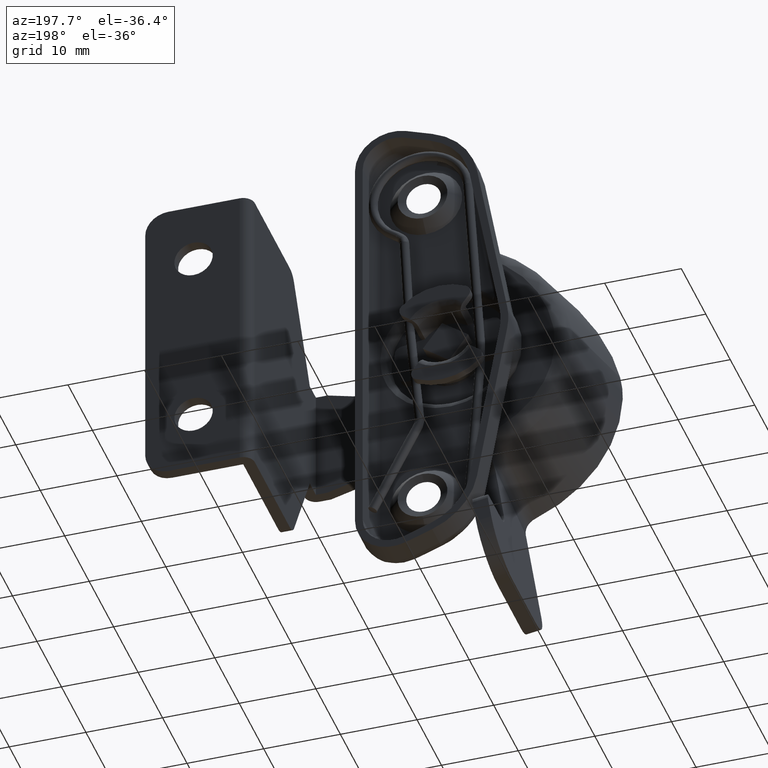
[diagram: clean part render]
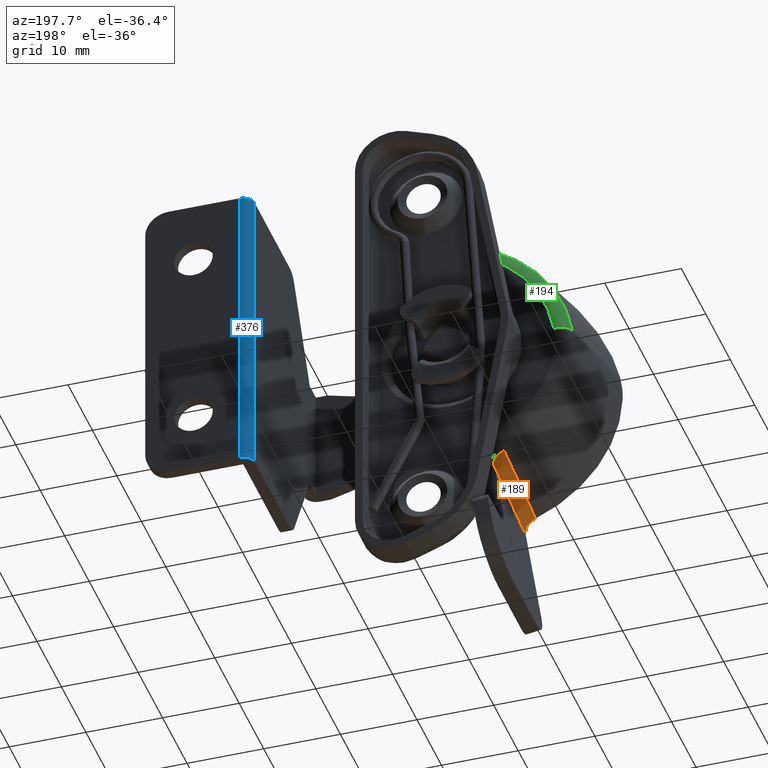
[diagram: same view with three faces highlighted in distinct colors, each labeled with its STEP entity id]
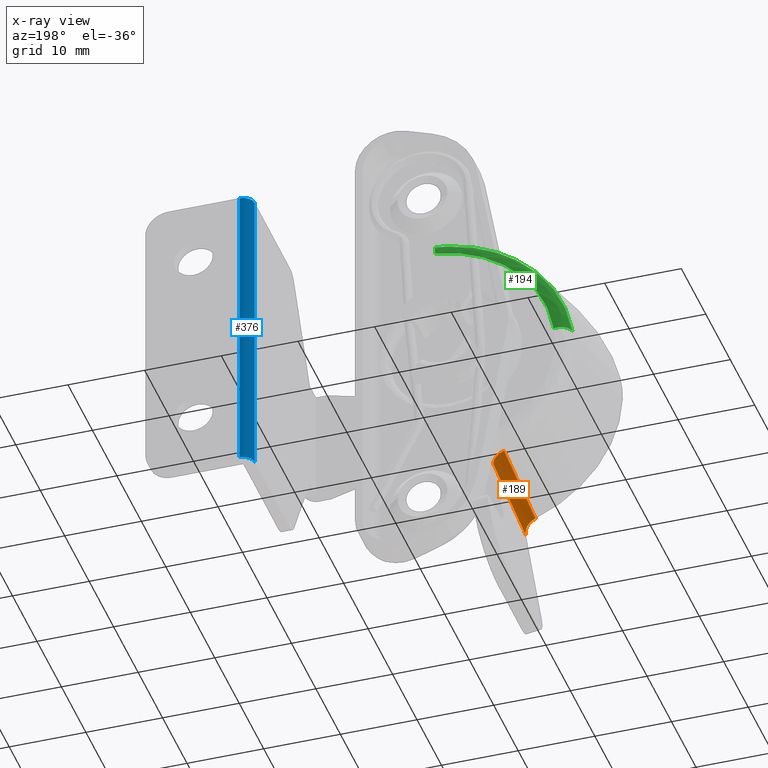
[diagram: x-ray of the same camera — body ghosted, the three highlighted faces saturated]
A machine part, auxiliary view with three faces highlighted in distinct colors.
The next image is the same camera in x-ray (body ghosted, the three faces saturated) — at least one of them is partly hidden behind the body in this view.
Their STEP definitions:

[orange] entity #189 — the highlighted face is a freeform B-spline surface patch.
#189=ADVANCED_FACE('',(#433),#432,.F.);
#432=( BOUNDED_SURFACE() B_SPLINE_SURFACE( 3,2,((#2611,#2612,#2613),(#2614,#2615,#2616),(#2617,#2618,#2619),(#2620,#2621,#2622)), .UNSPECIFIED.,.F.,.F.,.F.) B_SPLINE_SURFACE_WITH_KNOTS((4,4),(3,3),(4.58591804505E-04,1.27257944679E-02),(0.00000000000E+00,1.00000000000E+00), .UNSPECIFIED. ) GEOMETRIC_REPRESENTATION_ITEM() RATIONAL_B_SPLINE_SURFACE(((1.00000000000E+00,7.84169253251E-01,1.00000000000E+00),(1.00000000000E+00,7.80433225810E-01,1.00000000000E+00),(1.00000000000E+00,7.77230837199E-01,1.00000000000E+00),(1.00000000000E+00,7.74381274733E-01,1.00000000000E+00))) REPRESENTATION_ITEM('') SURFACE() );
#433=FACE_OUTER_BOUND('',#2623,.T.);
#2611=CARTESIAN_POINT('',(-2.77216384993E+01,-2.26717670756E-02,-1.39217377659E+01));
#2612=CARTESIAN_POINT('',(-2.62531310222E+01,5.67293244882E-02,-1.45066116554E+01));
#2613=CARTESIAN_POINT('',(-2.64877668766E+01,4.02187521587E-01,-1.60332094610E+01));
#2614=CARTESIAN_POINT('',(-2.78795426122E+01,-4.01314871259E+00,-1.47947432791E+01));
#2615=CARTESIAN_POINT('',(-2.63864174512E+01,-3.95615913769E+00,-1.53738055059E+01));
#2616=CARTESIAN_POINT('',(-2.66233560774E+01,-3.58828778314E+00,-1.69153857038E+01));
#2617=CARTESIAN_POINT('',(-2.80335949263E+01,-8.00445367574E+00,-1.56658640131E+01));
#2618=CARTESIAN_POINT('',(-2.65187665275E+01,-7.94587941642E+00,-1.62349007124E+01));
#2619=CARTESIAN_POINT('',(-2.67583777099E+01,-7.57959293989E+00,-1.77938692096E+01));
#2620=CARTESIAN_POINT('',(-2.81851358894E+01,-1.19962836512E+01,-1.65356898046E+01));
#2621=CARTESIAN_POINT('',(-2.66506942865E+01,-1.19256707552E+01,-1.70932547260E+01));
#2622=CARTESIAN_POINT('',(-2.68930391307E+01,-1.15714243626E+01,-1.86700090902E+01));
#2623=EDGE_LOOP('',(#4497,#4498,#4499,#4500));
#4497=ORIENTED_EDGE('',*,*,#5583,.T.);
#4498=ORIENTED_EDGE('',*,*,#5584,.T.);
#4499=ORIENTED_EDGE('',*,*,#5585,.T.);
#4500=ORIENTED_EDGE('',*,*,#5586,.T.);
#5583=EDGE_CURVE('',#6209,#6210,#6211,.T.);
#5584=EDGE_CURVE('',#6210,#6217,#6218,.T.);
#5585=EDGE_CURVE('',#6217,#6224,#6225,.T.);
#5586=EDGE_CURVE('',#6224,#6209,#6231,.T.);
#6209=VERTEX_POINT('',#9837);
#6210=VERTEX_POINT('',#9838);
#6211=(BOUNDED_CURVE() B_SPLINE_CURVE(3,(#9839,#9840,#9841,#9842,#9843,#9844,#9845,#9846,#9847,#9848),.UNSPECIFIED.,.F.,.F.) B_SPLINE_CURVE_WITH_KNOTS((4,2,2,2,4),(0.00000000000E+00,6.90796876993E-04,1.38159375399E-03,2.07239063098E-03,2.76318750797E-03),.UNSPECIFIED.) CURVE() GEOMETRIC_REPRESENTATION_ITEM() RATIONAL_B_SPLINE_CURVE((1.00000000000E+00,1.00000000000E+00,1.00000000000E+00,1.00000000000E+00,1.00000000000E+00,1.00000000000E+00,1.00000000000E+00,1.00000000000E+00,1.00000000000E+00,1.00000000000E+00)) REPRESENTATION_ITEM('') );
#6217=VERTEX_POINT('',#9849);
#6218=(BOUNDED_CURVE() B_SPLINE_CURVE(3,(#9850,#9851,#9852,#9853,#9854,#9855,#9856),.UNSPECIFIED.,.F.,.F.) B_SPLINE_CURVE_WITH_KNOTS((4,3,4),(0.00000000000E+00,4.00000012331E-03,1.17560993783E-02),.UNSPECIFIED.) CURVE() GEOMETRIC_REPRESENTATION_ITEM() RATIONAL_B_SPLINE_CURVE((1.00000000000E+00,1.00000000000E+00,1.00000000000E+00,1.00000000000E+00,1.00000000000E+00,1.00000000000E+00,1.00000000000E+00)) REPRESENTATION_ITEM('') );
#6224=VERTEX_POINT('',#9857);
#6225=CIRCLE('',#9861,2.00000000000E+00);
#6231=(BOUNDED_CURVE() B_SPLINE_CURVE(3,(#9862,#9863,#9864,#9865),.UNSPECIFIED.,.F.,.F.) B_SPLINE_CURVE_WITH_KNOTS((4,4),(4.58592220982E-04,1.26526338557E-02),.UNSPECIFIED.) CURVE() GEOMETRIC_REPRESENTATION_ITEM() RATIONAL_B_SPLINE_CURVE((1.00000000000E+00,1.00000000000E+00,1.00000000000E+00,1.00000000000E+00)) REPRESENTATION_ITEM('') );
#9837=CARTESIAN_POINT('',(-2.68906296423E+01,-1.15000000000E+01,-1.86543323738E+01));
#9838=CARTESIAN_POINT('',(-2.81662821626E+01,-1.15000000000E+01,-1.64275414148E+01));
#9839=CARTESIAN_POINT('',(-2.68906296423E+01,-1.15000000000E+01,-1.86543323738E+01));
#9840=CARTESIAN_POINT('',(-2.68551497542E+01,-1.15000000000E+01,-1.84234916126E+01));
#9841=CARTESIAN_POINT('',(-2.68580830727E+01,-1.15000000000E+01,-1.81932438340E+01));
#9842=CARTESIAN_POINT('',(-2.69412103467E+01,-1.15000000000E+01,-1.77339409449E+01));
#9843=CARTESIAN_POINT('',(-2.70193245137E+01,-1.15000000000E+01,-1.75170051807E+01));
#9844=CARTESIAN_POINT('',(-2.72492369522E+01,-1.15000000000E+01,-1.71111521817E+01));
#9845=CARTESIAN_POINT('',(-2.73954312533E+01,-1.15000000000E+01,-1.69323714322E+01));
#9846=CARTESIAN_POINT('',(-2.77488283515E+01,-1.15000000000E+01,-1.66279328436E+01));
#9847=CARTESIAN_POINT('',(-2.79474764654E+01,-1.15000000000E+01,-1.65096728569E+01));
#9848=CARTESIAN_POINT('',(-2.81662821626E+01,-1.15000000000E+01,-1.64275414148E+01));
#9849=CARTESIAN_POINT('',(-2.77216384993E+01,-2.26717670756E-02,-1.39217377659E+01));
#9850=CARTESIAN_POINT('',(-2.81662821626E+01,-1.15000000000E+01,-1.64275414148E+01));
#9851=CARTESIAN_POINT('',(-2.81167894239E+01,-1.01981422255E+01,-1.61438255515E+01));
#9852=CARTESIAN_POINT('',(-2.80670187797E+01,-8.89632667037E+00,-1.58599642118E+01));
#9853=CARTESIAN_POINT('',(-2.80169309206E+01,-7.59455908691E+00,-1.55759391207E+01));
#9854=CARTESIAN_POINT('',(-2.79198093366E+01,-5.07039990329E+00,-1.50252075220E+01));
#9855=CARTESIAN_POINT('',(-2.78215037826E+01,-2.54641926814E+00,-1.44738636176E+01));
#9856=CARTESIAN_POINT('',(-2.77216384993E+01,-2.26717670756E-02,-1.39217377659E+01));
#9857=CARTESIAN_POINT('',(-2.64877668766E+01,4.02187521587E-01,-1.60332094610E+01));
#9858=CARTESIAN_POINT('',(-2.84645541057E+01,4.02187521587E-01,-1.57293801494E+01));
#9859=DIRECTION('',(3.31589147630E-02,9.75887679065E-01,2.15739945818E-01));
#9860=DIRECTION('',(1.48251640896E-01,-2.18273309980E-01,9.64561150535E-01));
#9861=AXIS2_PLACEMENT_3D('',#9858,#9859,#9860);
#9862=CARTESIAN_POINT('',(-2.64877668766E+01,4.02187521587E-01,-1.60332094610E+01));
#9863=CARTESIAN_POINT('',(-2.66225473140E+01,-3.56448536928E+00,-1.69101236930E+01));
#9864=CARTESIAN_POINT('',(-2.67567669063E+01,-7.53198095217E+00,-1.77833889301E+01));
#9865=CARTESIAN_POINT('',(-2.68906296423E+01,-1.15000000000E+01,-1.86543323738E+01));

[blue] entity #376 — the highlighted cylindrical surface (edge-blend (fillet) strip) has radius 1.5 mm, axis along (0, 0, -1).
#376=ADVANCED_FACE('',(#2315),#2314,.T.);
#2314=CYLINDRICAL_SURFACE('',#4350,1.50000000000E+00);
#2315=FACE_OUTER_BOUND('',#4351,.T.);
#4347=CARTESIAN_POINT('',(1.22999880000E+01,-1.50000000000E+00,2.00000000000E+01));
#4348=DIRECTION('',(-0.00000000000E+00,-0.00000000000E+00,1.00000000000E+00));
#4349=DIRECTION('',(1.00000000000E+00,-0.00000000000E+00,-0.00000000000E+00));
#4350=AXIS2_PLACEMENT_3D('',#4347,#4348,#4349);
#4351=EDGE_LOOP('',(#5425,#5426,#5427,#5428));
#5425=ORIENTED_EDGE('',*,*,#6052,.F.);
#5426=ORIENTED_EDGE('',*,*,#6053,.F.);
#5427=ORIENTED_EDGE('',*,*,#6054,.F.);
#5428=ORIENTED_EDGE('',*,*,#6055,.F.);
#6052=EDGE_CURVE('',#9317,#9318,#9319,.T.);
#6053=EDGE_CURVE('',#9325,#9317,#9326,.T.);
#6054=EDGE_CURVE('',#9332,#9325,#9333,.T.);
#6055=EDGE_CURVE('',#9318,#9332,#9339,.T.);
#9317=VERTEX_POINT('',#11901);
#9318=VERTEX_POINT('',#11902);
#9319=CIRCLE('',#11906,1.50000000000E+00);
#9325=VERTEX_POINT('',#11907);
#9326=LINE('',#11908,#11909);
#9332=VERTEX_POINT('',#11911);
#9333=CIRCLE('',#11915,1.50000000000E+00);
#9339=LINE('',#11916,#11917);
#11901=CARTESIAN_POINT('',(1.37999880000E+01,-1.50000000000E+00,2.00000000000E+01));
#11902=CARTESIAN_POINT('',(1.22999880000E+01,0.00000000000E+00,2.00000000000E+01));
#11903=CARTESIAN_POINT('',(1.22999880000E+01,-1.50000000000E+00,2.00000000000E+01));
#11904=DIRECTION('',(-0.00000000000E+00,0.00000000000E+00,1.00000000000E+00));
#11905=DIRECTION('',(-1.00000000000E+00,-0.00000000000E+00,-0.00000000000E+00));
#11906=AXIS2_PLACEMENT_3D('',#11903,#11904,#11905);
#11907=CARTESIAN_POINT('',(1.37999880000E+01,-1.50000000000E+00,-2.00000000000E+01));
#11908=CARTESIAN_POINT('',(1.37999880000E+01,-1.50000000000E+00,-2.00000000000E+01));
#11909=VECTOR('',#11910,4.00000000000E+01);
#11910=DIRECTION('',(0.00000000000E+00,0.00000000000E+00,1.00000000000E+00));
#11911=CARTESIAN_POINT('',(1.22999880000E+01,0.00000000000E+00,-2.00000000000E+01));
#11912=CARTESIAN_POINT('',(1.22999880000E+01,-1.50000000000E+00,-2.00000000000E+01));
#11913=DIRECTION('',(0.00000000000E+00,0.00000000000E+00,-1.00000000000E+00));
#11914=DIRECTION('',(1.00000000000E+00,-0.00000000000E+00,-0.00000000000E+00));
#11915=AXIS2_PLACEMENT_3D('',#11912,#11913,#11914);
#11916=CARTESIAN_POINT('',(1.22999880000E+01,0.00000000000E+00,2.00000000000E+01));
#11917=VECTOR('',#11918,4.00000000000E+01);
#11918=DIRECTION('',(0.00000000000E+00,0.00000000000E+00,-1.00000000000E+00));

[green] entity #194 — the highlighted face is a freeform B-spline surface patch.
#194=ADVANCED_FACE('',(#483),#482,.T.);
#482=( BOUNDED_SURFACE() B_SPLINE_SURFACE( 2,2,((#2709,#2710,#2711,#2712,#2713),(#2714,#2715,#2716,#2717,#2718),(#2719,#2720,#2721,#2722,#2723)), .UNSPECIFIED.,.F.,.F.,.F.) B_SPLINE_SURFACE_WITH_KNOTS((3,3),(3,2,3),(0.00000000000E+00,1.00000000000E+00),(0.00000000000E+00,5.00000000000E-01,1.00000000000E+00), .UNSPECIFIED. ) GEOMETRIC_REPRESENTATION_ITEM() RATIONAL_B_SPLINE_SURFACE(((1.00000000000E+00,7.78486593591E-01,1.00000000000E+00,7.78486593591E-01,1.00000000000E+00),(7.88334668443E-01,6.13707970646E-01,7.88334668443E-01,6.13707970646E-01,7.88334668443E-01),(1.00000000000E+00,7.78486593591E-01,1.00000000000E+00,7.78486593591E-01,1.00000000000E+00))) REPRESENTATION_ITEM('') SURFACE() );
#483=FACE_OUTER_BOUND('',#2724,.T.);
#2709=CARTESIAN_POINT('',(-3.67809356908E+01,4.24165505603E-01,2.27180824045E+00));
#2710=CARTESIAN_POINT('',(-3.64429179877E+01,2.00000000000E+00,2.21985541287E+00));
#2711=CARTESIAN_POINT('',(-3.48491169895E+01,2.00000000000E+00,1.97489052587E+00));
#2712=CARTESIAN_POINT('',(-3.32553159914E+01,2.00000000000E+00,1.72992563887E+00));
#2713=CARTESIAN_POINT('',(-3.29172982883E+01,4.24165505603E-01,1.67797281130E+00));
#2714=CARTESIAN_POINT('',(-3.44388411123E+01,4.24165505603E-01,1.75100439029E+01));
#2715=CARTESIAN_POINT('',(-3.41413693915E+01,2.00000000000E+00,1.71942890752E+01));
#2716=CARTESIAN_POINT('',(-3.27387484012E+01,2.00000000000E+00,1.57054606651E+01));
#2717=CARTESIAN_POINT('',(-3.13361274109E+01,2.00000000000E+00,1.42166322550E+01));
#2718=CARTESIAN_POINT('',(-3.10386556901E+01,4.24165505603E-01,1.39008774273E+01));
#2719=CARTESIAN_POINT('',(-1.90881390354E+01,4.24165505603E-01,1.89401414056E+01));
#2720=CARTESIAN_POINT('',(-1.90564163161E+01,2.00000000000E+00,1.85996289492E+01));
#2721=CARTESIAN_POINT('',(-1.89068392339E+01,2.00000000000E+00,1.69940648383E+01));
#2722=CARTESIAN_POINT('',(-1.87572621518E+01,2.00000000000E+00,1.53885007274E+01));
#2723=CARTESIAN_POINT('',(-1.87255394325E+01,4.24165505603E-01,1.50479882710E+01));
#2724=EDGE_LOOP('',(#4524,#4525,#4526,#4527));
#4524=ORIENTED_EDGE('',*,*,#5605,.T.);
#4525=ORIENTED_EDGE('',*,*,#5606,.T.);
#4526=ORIENTED_EDGE('',*,*,#5607,.T.);
#4527=ORIENTED_EDGE('',*,*,#5572,.T.);
#5572=EDGE_CURVE('',#6135,#6128,#6136,.T.);
#5605=EDGE_CURVE('',#6128,#6360,#6361,.T.);
#5606=EDGE_CURVE('',#6360,#6367,#6368,.T.);
#5607=EDGE_CURVE('',#6367,#6135,#6374,.T.);
#6128=VERTEX_POINT('',#9760);
#6135=VERTEX_POINT('',#9765);
#6136=CIRCLE('',#9769,1.97543527278E+01);
#6360=VERTEX_POINT('',#9995);
#6361=(BOUNDED_CURVE() B_SPLINE_CURVE(3,(#9996,#9997,#9998,#9999,#10000,#10001,#10002,#10003,#10004,#10005),.UNSPECIFIED.,.F.,.F.) B_SPLINE_CURVE_WITH_KNOTS((4,2,2,2,4),(5.95263931442E-16,6.88989971961E-04,1.37797994392E-03,2.06696991588E-03,2.75595988784E-03),.UNSPECIFIED.) CURVE() GEOMETRIC_REPRESENTATION_ITEM() RATIONAL_B_SPLINE_CURVE((1.00000000000E+00,1.00000000000E+00,1.00000000000E+00,1.00000000000E+00,1.00000000000E+00,1.00000000000E+00,1.00000000000E+00,1.00000000000E+00,1.00000000000E+00,1.00000000000E+00)) REPRESENTATION_ITEM('') );
#6367=VERTEX_POINT('',#10006);
#6368=CIRCLE('',#10010,1.78000000000E+01);
#6374=CIRCLE('',#10014,2.00000000000E+00);
#9760=CARTESIAN_POINT('',(-1.90889629746E+01,4.24859288663E-01,1.89399132821E+01));
#9765=CARTESIAN_POINT('',(-3.67807867464E+01,4.24859288662E-01,2.27178534791E+00));
#9766=CARTESIAN_POINT('',(-1.72557106500E+01,4.24859288662E-01,-7.29190347995E-01));
#9767=DIRECTION('',(0.00000000000E+00,1.00000000000E+00,0.00000000000E+00));
#9768=DIRECTION('',(1.51914655832E-01,-0.00000000000E+00,9.88393614580E-01));
#9769=AXIS2_PLACEMENT_3D('',#9766,#9767,#9768);
#9995=CARTESIAN_POINT('',(-1.93960923963E+01,2.00000000000E+00,1.69416547359E+01));
#9996=CARTESIAN_POINT('',(-1.90889629746E+01,4.24859288662E-01,1.89399132821E+01));
#9997=CARTESIAN_POINT('',(-1.90967047848E+01,6.52256916310E-01,1.88895431862E+01));
#9998=CARTESIAN_POINT('',(-1.91103104039E+01,8.64758290478E-01,1.88010217269E+01));
#9999=CARTESIAN_POINT('',(-1.91486017373E+01,1.25555553104E+00,1.85518890199E+01));
#10000=CARTESIAN_POINT('',(-1.91725103421E+01,1.42535992612E+00,1.83963338354E+01));
#10001=CARTESIAN_POINT('',(-1.92284269352E+01,1.70800504543E+00,1.80325269115E+01));
#10002=CARTESIAN_POINT('',(-1.92595860629E+01,1.81635039723E+00,1.78297980657E+01));
#10003=CARTESIAN_POINT('',(-1.93263486053E+01,1.96333441413E+00,1.73954247645E+01));
#10004=CARTESIAN_POINT('',(-1.93607250748E+01,2.00000000000E+00,1.71717631117E+01));
#10005=CARTESIAN_POINT('',(-1.93960923963E+01,2.00000000000E+00,1.69416547359E+01));
#10006=CARTESIAN_POINT('',(-3.48491169895E+01,2.00000000000E+00,1.97489052588E+00));
#10007=CARTESIAN_POINT('',(-1.72557106500E+01,2.00000000000E+00,-7.29190347995E-01));
#10008=DIRECTION('',(0.00000000000E+00,-1.00000000000E+00,0.00000000000E+00));
#10009=DIRECTION('',(-1.51914655832E-01,-0.00000000000E+00,-9.88393614580E-01));
#10010=AXIS2_PLACEMENT_3D('',#10007,#10008,#10009);
#10011=CARTESIAN_POINT('',(-3.48491169895E+01,-5.68121938382E-14,1.97489052588E+00));
#10012=DIRECTION('',(1.51914655837E-01,0.00000000000E+00,9.88393614580E-01));
#10013=DIRECTION('',(-9.88393614580E-01,-0.00000000000E+00,1.51914655837E-01));
#10014=AXIS2_PLACEMENT_3D('',#10011,#10012,#10013);